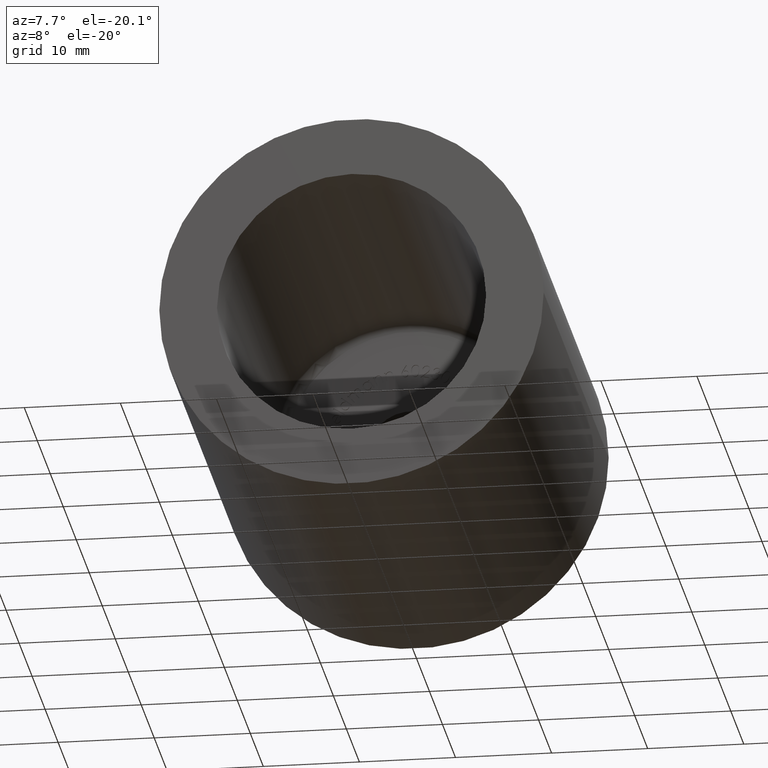
[diagram: clean part render]
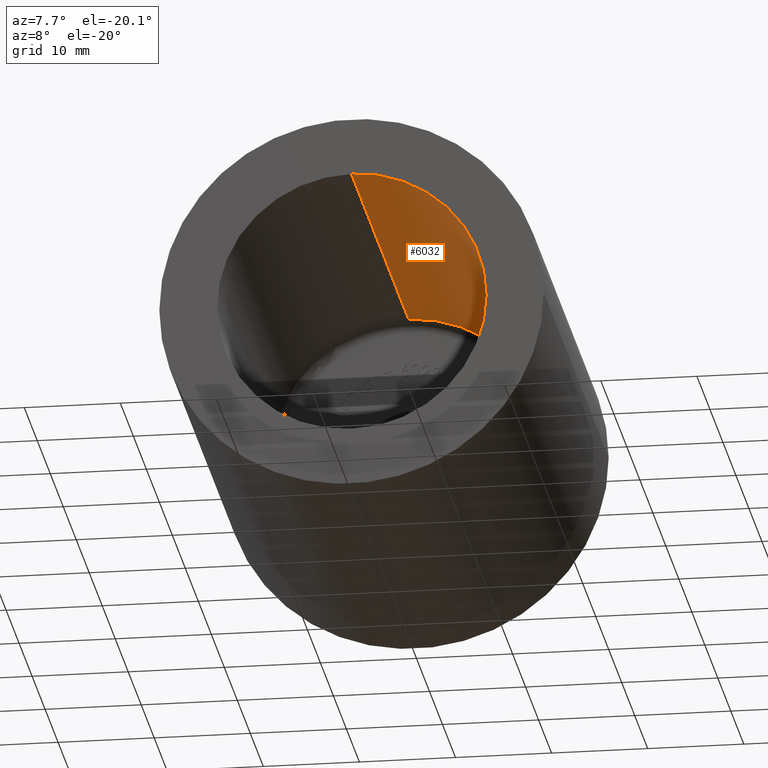
[diagram: same view with one face highlighted and labeled with its STEP entity id]
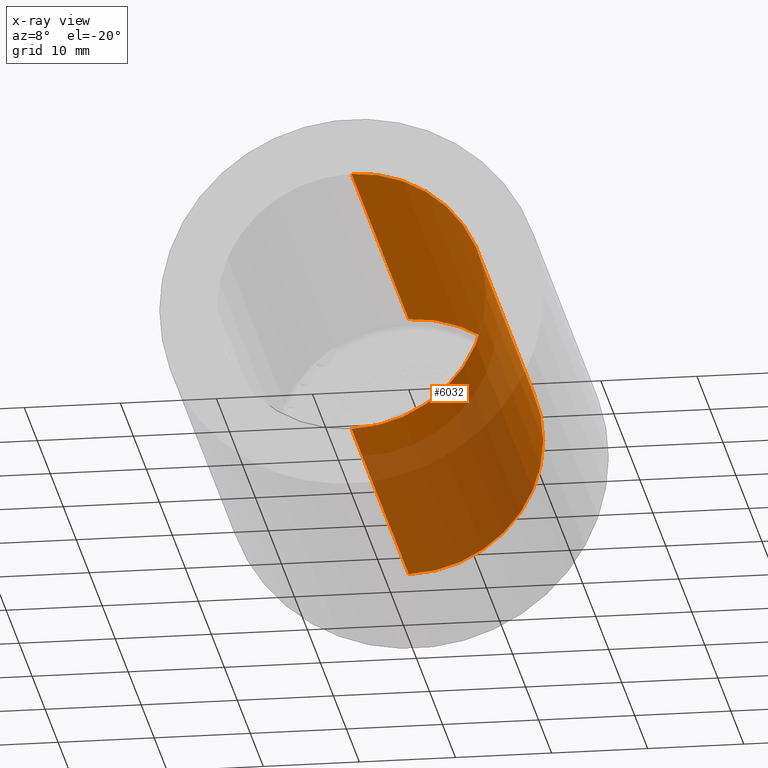
[diagram: x-ray of the same camera — body ghosted, the highlighted face saturated]
A machine part, auxiliary view. The second image highlights one B-rep face of the part: STEP entity #6032.
The next image is the same camera in x-ray: the body ghosted, the highlighted face saturated — about 56% of this face is hidden behind the body in this view.
In plain terms, the highlighted cylindrical surface (partial cylindrical patch) has radius 14 mm, axis along (-0, -1, -0).
Its self-contained STEP definition (entity closure, byte-faithful):
#1055 = EDGE_CURVE ( 'NONE', #13784, #12744, #10284, .T. ) ;
#1329 = CARTESIAN_POINT ( 'NONE',  ( 14.00000000000000178, 44.00000000000000711, 1.714505518806294638E-15 ) ) ;
#1687 = ORIENTED_EDGE ( 'NONE', *, *, #9915, .T. ) ;
#2006 = VECTOR ( 'NONE', #11006, 1000.000000000000000 ) ;
#2139 = VERTEX_POINT ( 'NONE', #11878 ) ;
#2330 = DIRECTION ( 'NONE',  ( -1.000000000000000000, 0.000000000000000000, 0.000000000000000000 ) ) ;
#3619 = DIRECTION ( 'NONE',  ( 0.000000000000000000, 0.000000000000000000, -1.000000000000000000 ) ) ;
#3710 = LINE ( 'NONE', #12142, #2006 ) ;
#4124 = ORIENTED_EDGE ( 'NONE', *, *, #6127, .F. ) ;
#4387 = DIRECTION ( 'NONE',  ( 0.000000000000000000, 0.000000000000000000, -1.000000000000000000 ) ) ;
#4769 = CARTESIAN_POINT ( 'NONE',  ( 0.000000000000000000, 44.00000000000000711, 0.000000000000000000 ) ) ;
#5228 = ORIENTED_EDGE ( 'NONE', *, *, #12772, .T. ) ;
#5719 = CIRCLE ( 'NONE', #12543, 14.00000000000000000 ) ;
#6032 = ADVANCED_FACE ( 'NONE', ( #15353 ), #7879, .F. ) ;
#6127 = EDGE_CURVE ( 'NONE', #2139, #12744, #8468, .T. ) ;
#7043 = AXIS2_PLACEMENT_3D ( 'NONE', #4769, #13370, #13419 ) ;
#7425 = ORIENTED_EDGE ( 'NONE', *, *, #1055, .T. ) ;
#7574 = CARTESIAN_POINT ( 'NONE',  ( 0.000000000000000000, 44.00000000000000711, -14.00000000000000000 ) ) ;
#7879 = CYLINDRICAL_SURFACE ( 'NONE', #15319, 14.00000000000000000 ) ;
#8304 = DIRECTION ( 'NONE',  ( -0.000000000000000000, -1.000000000000000000, -0.000000000000000000 ) ) ;
#8434 = DIRECTION ( 'NONE',  ( -6.938893903907228378E-17, 1.000000000000000000, -0.000000000000000000 ) ) ;
#8468 = LINE ( 'NONE', #12290, #11366 ) ;
#9746 = CARTESIAN_POINT ( 'NONE',  ( 0.000000000000000000, 0.000000000000000000, 0.000000000000000000 ) ) ;
#9778 = CARTESIAN_POINT ( 'NONE',  ( 1.714505518806294638E-15, 0.000000000000000000, 14.00000000000000000 ) ) ;
#9915 = EDGE_CURVE ( 'NONE', #15560, #13784, #3710, .T. ) ;
#9955 = DIRECTION ( 'NONE',  ( 0.000000000000000000, -1.000000000000000000, 0.000000000000000000 ) ) ;
#10284 = CIRCLE ( 'NONE', #13050, 14.00000000000000000 ) ;
#10686 = CARTESIAN_POINT ( 'NONE',  ( 0.000000000000000000, 89.59797974644668273, 0.000000000000000000 ) ) ;
#11006 = DIRECTION ( 'NONE',  ( -0.000000000000000000, -1.000000000000000000, -0.000000000000000000 ) ) ;
#11273 = DIRECTION ( 'NONE',  ( -0.000000000000000000, -1.000000000000000000, -0.000000000000000000 ) ) ;
#11366 = VECTOR ( 'NONE', #11273, 1000.000000000000000 ) ;
#11446 = CARTESIAN_POINT ( 'NONE',  ( 0.000000000000000000, 0.000000000000000000, -14.00000000000000000 ) ) ;
#11563 = CIRCLE ( 'NONE', #7043, 14.00000000000000000 ) ;
#11878 = CARTESIAN_POINT ( 'NONE',  ( 1.714505518806294638E-15, 44.00000000000000711, 14.00000000000000000 ) ) ;
#11979 = VERTEX_POINT ( 'NONE', #1329 ) ;
#12142 = CARTESIAN_POINT ( 'NONE',  ( 0.000000000000000000, 89.59797974644668273, -14.00000000000000000 ) ) ;
#12290 = CARTESIAN_POINT ( 'NONE',  ( 1.714505518806294638E-15, 89.59797974644668273, 14.00000000000000000 ) ) ;
#12543 = AXIS2_PLACEMENT_3D ( 'NONE', #15711, #8434, #2330 ) ;
#12744 = VERTEX_POINT ( 'NONE', #9778 ) ;
#12772 = EDGE_CURVE ( 'NONE', #2139, #11979, #11563, .T. ) ;
#13050 = AXIS2_PLACEMENT_3D ( 'NONE', #9746, #9955, #3619 ) ;
#13370 = DIRECTION ( 'NONE',  ( -6.938893903907228378E-17, 1.000000000000000000, -0.000000000000000000 ) ) ;
#13419 = DIRECTION ( 'NONE',  ( -1.000000000000000000, 0.000000000000000000, 0.000000000000000000 ) ) ;
#13784 = VERTEX_POINT ( 'NONE', #11446 ) ;
#14297 = EDGE_LOOP ( 'NONE', ( #4124, #5228, #15813, #1687, #7425 ) ) ;
#15319 = AXIS2_PLACEMENT_3D ( 'NONE', #10686, #8304, #4387 ) ;
#15353 = FACE_OUTER_BOUND ( 'NONE', #14297, .T. ) ;
#15560 = VERTEX_POINT ( 'NONE', #7574 ) ;
#15711 = CARTESIAN_POINT ( 'NONE',  ( 0.000000000000000000, 44.00000000000000711, 0.000000000000000000 ) ) ;
#15712 = EDGE_CURVE ( 'NONE', #11979, #15560, #5719, .T. ) ;
#15813 = ORIENTED_EDGE ( 'NONE', *, *, #15712, .T. ) ;